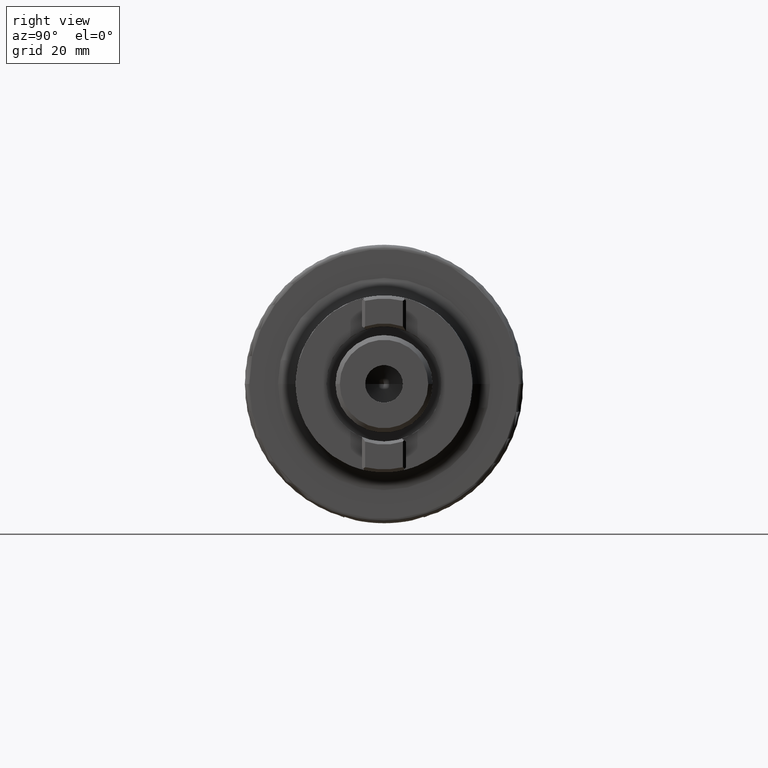
[diagram: clean part render]
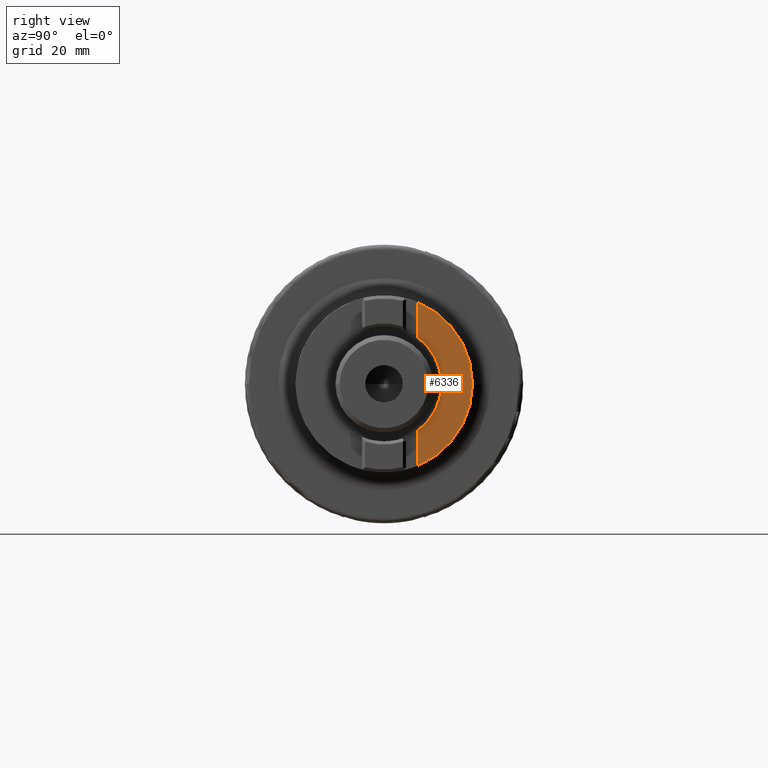
[diagram: same view with one face highlighted and labeled with its STEP entity id]
A machine part, right view. The second image highlights one B-rep face of the part: STEP entity #6336.
In plain terms, the highlighted planar face has unit normal (-1, 0, 0).
Its self-contained STEP definition (entity closure, byte-faithful):
#4186=CARTESIAN_POINT('',(0.E0,0.E0,0.E0));
#4187=DIRECTION('',(0.E0,-1.E0,0.E0));
#4188=DIRECTION('',(8.125549366953E-1,0.E0,5.828846153846E-1));
#4189=AXIS2_PLACEMENT_3D('',#4186,#4187,#4188);
#4291=CARTESIAN_POINT('',(0.E0,0.E0,0.E0));
#4292=DIRECTION('',(0.E0,-1.E0,0.E0));
#4293=DIRECTION('',(9.254478561081E-1,0.E0,3.78875E-1));
#4294=AXIS2_PLACEMENT_3D('',#4291,#4292,#4293);
#4890=DIRECTION('',(1.E0,0.E0,0.E0));
#4891=VECTOR('',#4890,7.945742945122E0);
#4892=CARTESIAN_POINT('',(-1.850895712216E1,0.E0,7.5775E0));
#4893=LINE('',#4892,#4891);
#4894=DIRECTION('',(1.E0,0.E0,0.E0));
#4895=VECTOR('',#4894,7.945742945122E0);
#4896=CARTESIAN_POINT('',(1.056321417704E1,0.E0,7.5775E0));
#4897=LINE('',#4896,#4895);
#4962=CARTESIAN_POINT('',(-1.850895712216E1,0.E0,7.5775E0));
#4963=CARTESIAN_POINT('',(-1.056321417704E1,0.E0,7.5775E0));
#4964=VERTEX_POINT('',#4962);
#4965=VERTEX_POINT('',#4963);
#4966=CARTESIAN_POINT('',(1.056321417704E1,0.E0,7.5775E0));
#4967=CARTESIAN_POINT('',(1.850895712216E1,0.E0,7.5775E0));
#4968=VERTEX_POINT('',#4966);
#4969=VERTEX_POINT('',#4967);
#6325=CARTESIAN_POINT('',(-2.4E1,0.E0,7.5775E0));
#6326=DIRECTION('',(0.E0,1.E0,0.E0));
#6327=DIRECTION('',(0.E0,0.E0,1.E0));
#6328=AXIS2_PLACEMENT_3D('',#6325,#6326,#6327);
#6329=PLANE('',#6328);
#6330=ORIENTED_EDGE('',*,*,#6306,.F.);
#6331=ORIENTED_EDGE('',*,*,#5550,.F.);
#6332=ORIENTED_EDGE('',*,*,#6319,.F.);
#6333=ORIENTED_EDGE('',*,*,#5453,.T.);
#6334=EDGE_LOOP('',(#6330,#6331,#6332,#6333));
#6335=FACE_OUTER_BOUND('',#6334,.F.);
#6336=ADVANCED_FACE('',(#6335),#6329,.F.);
#4190=CIRCLE('',#4189,1.3E1);
#4295=CIRCLE('',#4294,2.E1);
#5453=EDGE_CURVE('',#4968,#4965,#4190,.T.);
#5550=EDGE_CURVE('',#4969,#4964,#4295,.T.);
#6306=EDGE_CURVE('',#4964,#4965,#4893,.T.);
#6319=EDGE_CURVE('',#4968,#4969,#4897,.T.);